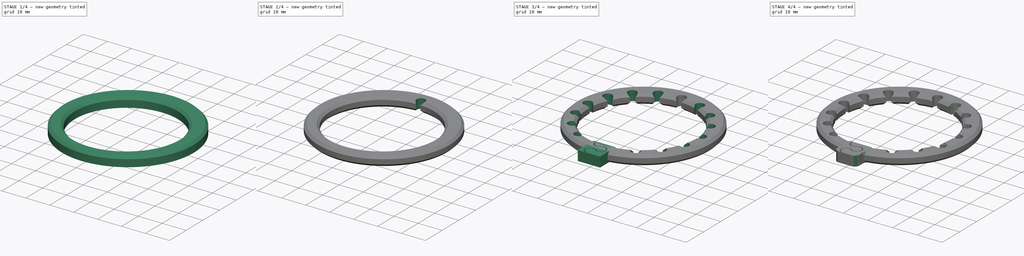
[diagram: build sequence overview — one tinted view per stage of 4, left to right]
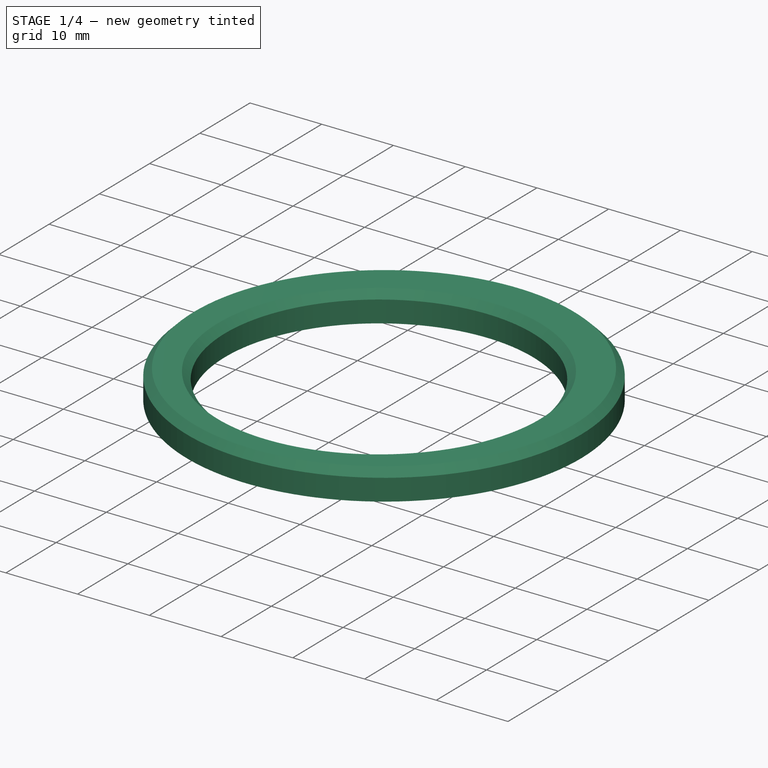
[diagram: stage 1 of 4 — iso view after this stage's code; geometry added in this stage tinted green]
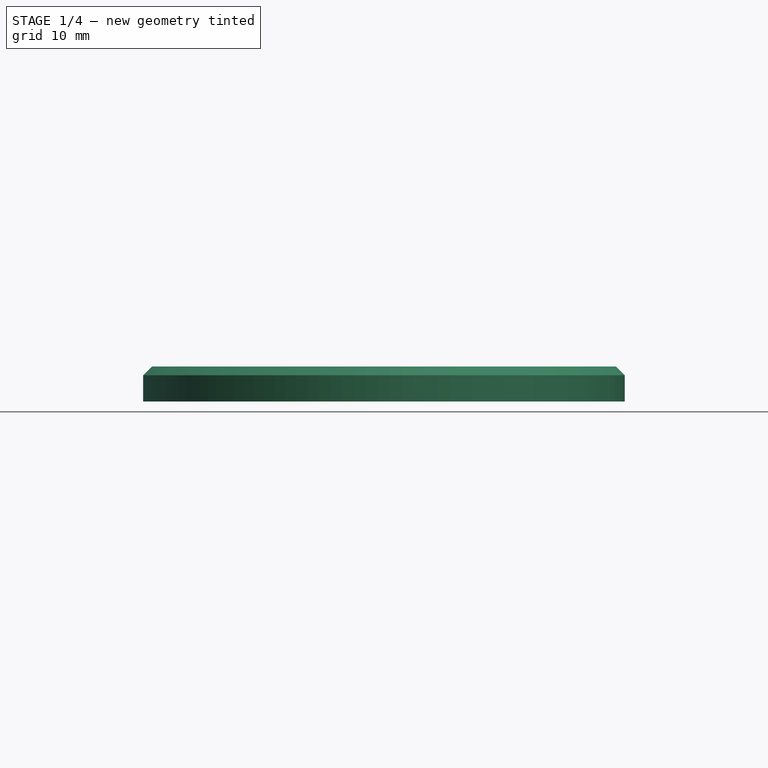
[diagram: stage 1 of 4 — front view after this stage's code; geometry added in this stage tinted green]
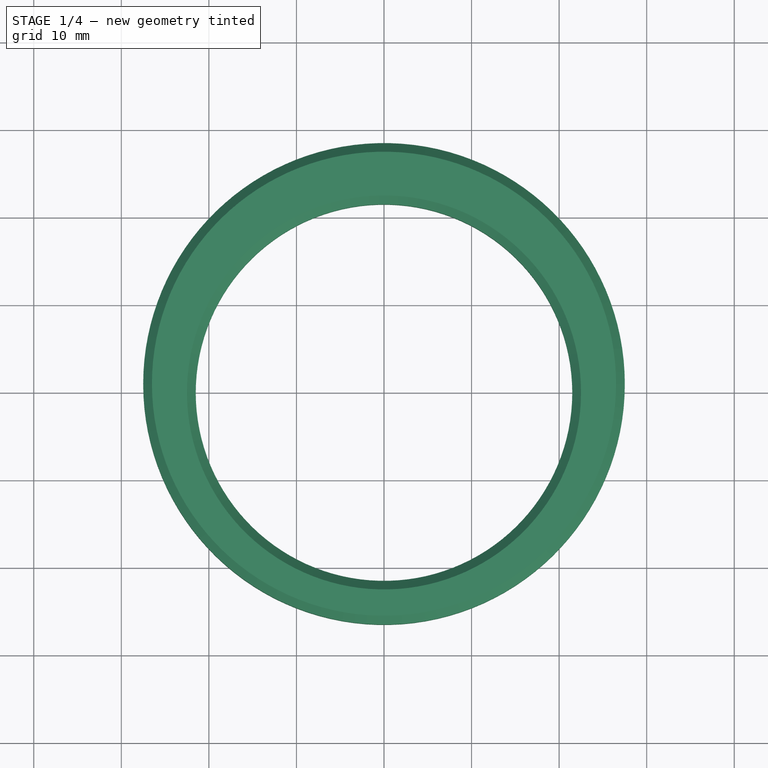
[diagram: stage 1 of 4 — top view after this stage's code; geometry added in this stage tinted green]
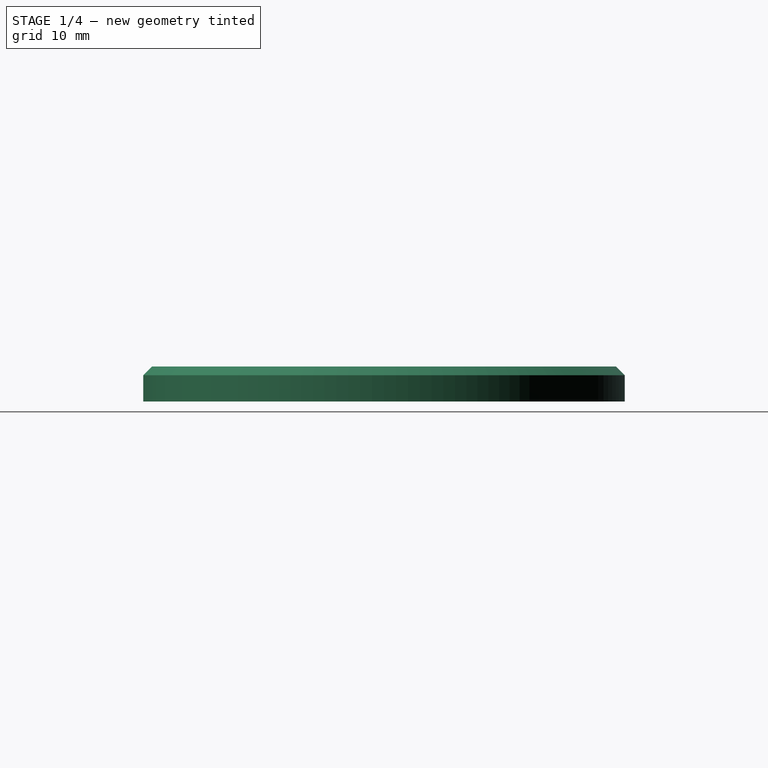
[diagram: stage 1 of 4 — right view after this stage's code; geometry added in this stage tinted green]
FCSTD DOCUMENT  (FreeCAD 0.17R13541 (Git))
Label: BigClip3
License: All rights reserved
LicenseURL: http://en.wikipedia.org/wiki/All_rights_reserved
objects: Sketcher::SketchObject×4, PartDesign::Chamfer×4, PartDesign::Fillet×3, PartDesign::Pad×2, PartDesign::Pocket×2, PartDesign::PolarPattern×2, Spreadsheet::Sheet×1, PartDesign::Body×1
note: 22 computed .brp shape members not serialized (recipe doc carries the construction recipe); baked Part::Feature solids carry a one-line shape summary decoded from their .brp

FEATURE [Sketcher::SketchObject] Sketch
  MapMode = 5
  Support = -> [XY_Plane]
  expr: Constraints[3] = P.OuterRadius
  expr: Constraints[2] = P.InnerRadius
  sketch-geometry (2):
    g0: Circle CenterX=0 CenterY=0 CenterZ=0 NormalX=0 NormalY=0 NormalZ=1 AngleXU=0 Radius=21.5
    g1: Circle CenterX=0 CenterY=1 CenterZ=0 NormalX=0 NormalY=0 NormalZ=1 AngleXU=0 Radius=27.5
  constraints (5):
    c: Coincident(g0,g-1)
    c: PointOnObject(g1,g-2)
    c: Radius(g0) = 21.5
    c: Radius(g1) = 27.5
    c: DistanceY(g-1,g1) = 1
FEATURE [Spreadsheet::Sheet] Spreadsheet  label="P"
  cells = A1=Inner radius; B1(InnerRadius)==21.5mm; A2=Thick; B2(Thick)==5.5mm; A3=Wide; B3(Wide)==4mm; A4=Fiber radius; B4(FiberRadius)==1.8mm; A5=Outer radius; B5(OuterRadius)==27.5mm
FEATURE [PartDesign::Pad] Pad
  Length = 4
  Length2 = 100
  Profile = -> Sketch
  Type = 0
  expr: Length = P.Wide
FEATURE [Sketcher::SketchObject] Sketch001
  MapMode = 5
  Support = -> [XY_Plane]
  expr: Constraints[6] = P.FiberRadius
  expr: Constraints[3] = P.InnerRadius
  expr: Constraints[2] = P.InnerRadius
  sketch-geometry (3):
    g0: LineSegment StartX=0 StartY=0 StartZ=0 EndX=0.9 EndY=21.4812 EndZ=0
    g1: LineSegment StartX=-0.9 StartY=21.4812 StartZ=0 EndX=0 EndY=0 EndZ=0
    g2: ArcOfCircle CenterX=0 CenterY=23.04 CenterZ=0 NormalX=0 NormalY=0 NormalZ=1 AngleXU=0 Radius=1.8 StartAngle=5.23599 EndAngle=10.472
  constraints (9):
    c: Coincident(g1,g-1)
    c: Coincident(g0,g-1)
    c: Distance(g0) = 21.5
    c: Distance(g1) = 21.5
    c: Coincident(g2,g1)
    c: Coincident(g2,g0)
    c: Radius(g2) = 1.8
    c: Distance(g1,g0) = 1.8
    c: DistanceX(g-1,g2) = 0
FEATURE [PartDesign::Chamfer] Chamfer
  Base = -> Pad [Edge3]
  BaseFeature = -> Pad
  Size = 1
FEATURE [PartDesign::Chamfer] Chamfer001
  Base = -> Chamfer [Edge7]
  BaseFeature = -> Chamfer
  Size = 1
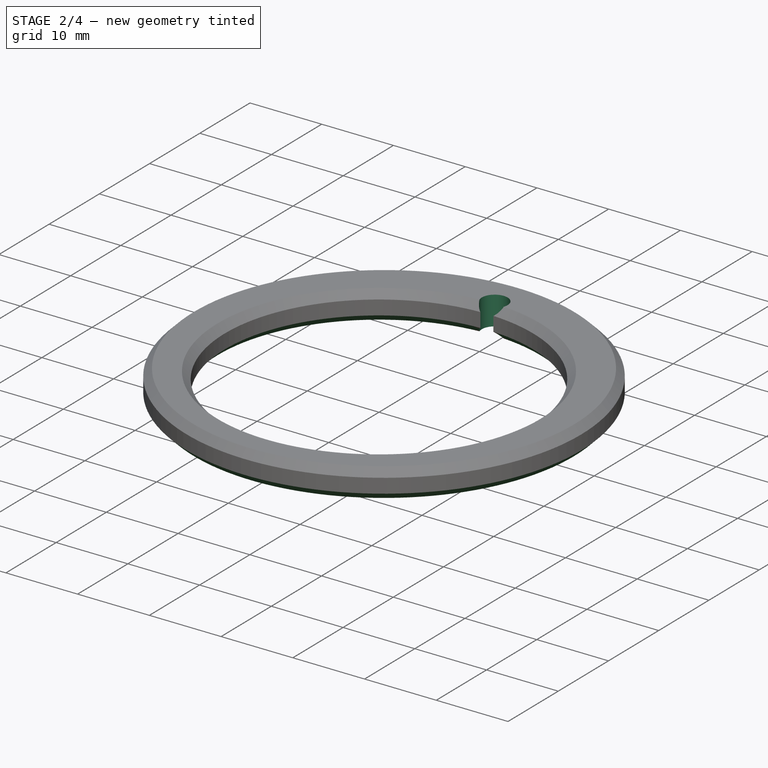
[diagram: stage 2 of 4 — iso view after this stage's code; geometry added in this stage tinted green]
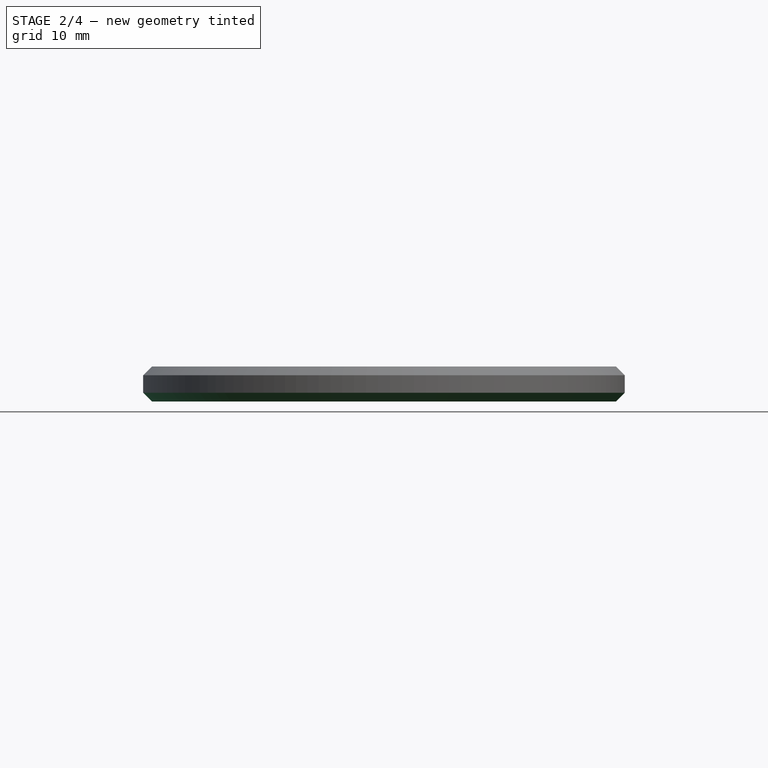
[diagram: stage 2 of 4 — front view after this stage's code; geometry added in this stage tinted green]
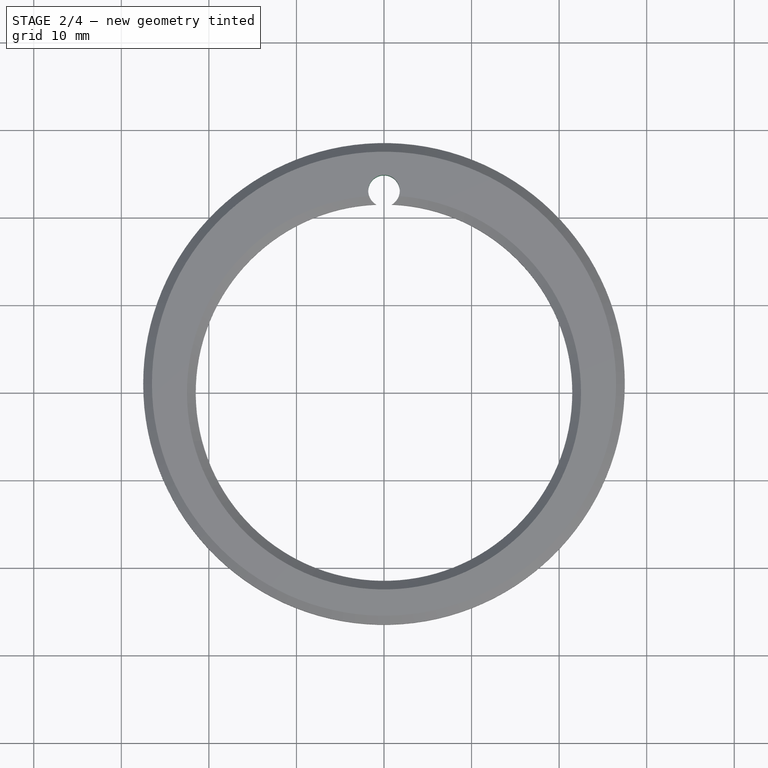
[diagram: stage 2 of 4 — top view after this stage's code; geometry added in this stage tinted green]
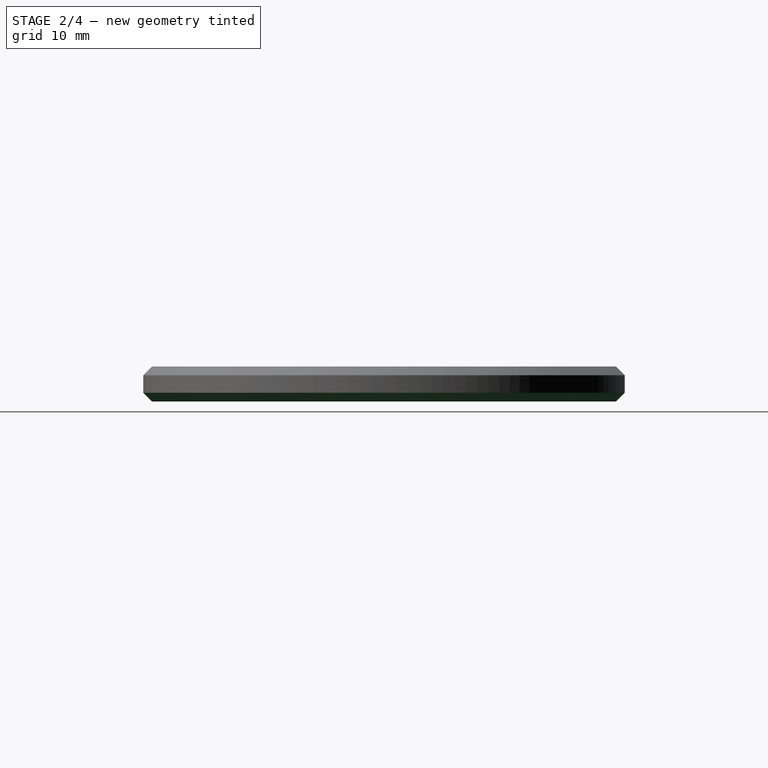
[diagram: stage 2 of 4 — right view after this stage's code; geometry added in this stage tinted green]
FEATURE [PartDesign::Chamfer] Chamfer002
  Base = -> Chamfer001 [Edge8]
  BaseFeature = -> Chamfer001
  Size = 1
FEATURE [PartDesign::Chamfer] Chamfer003
  Base = -> Chamfer002 [Edge8]
  BaseFeature = -> Chamfer002
  Size = 1
FEATURE [PartDesign::Pocket] Pocket
  BaseFeature = -> Chamfer003
  Length = 5
  Length2 = 100
  Profile = -> Sketch001
  Reversed = true
  Type = 1
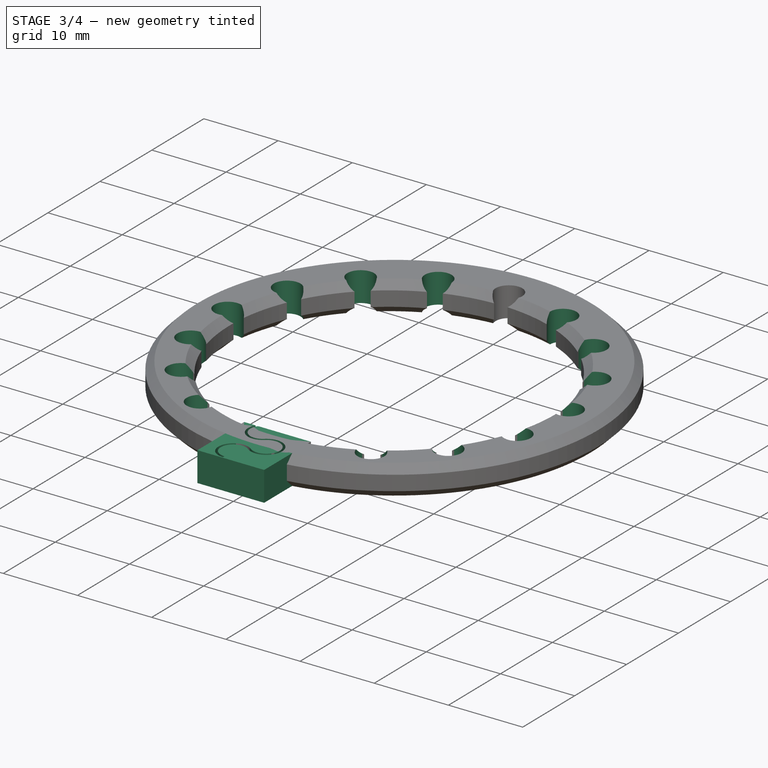
[diagram: stage 3 of 4 — iso view after this stage's code; geometry added in this stage tinted green]
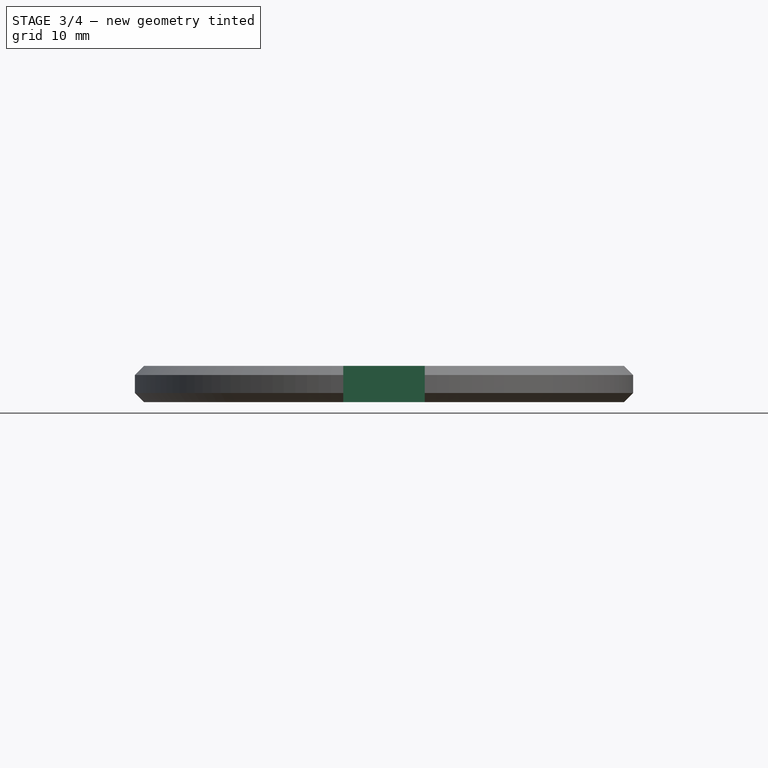
[diagram: stage 3 of 4 — front view after this stage's code; geometry added in this stage tinted green]
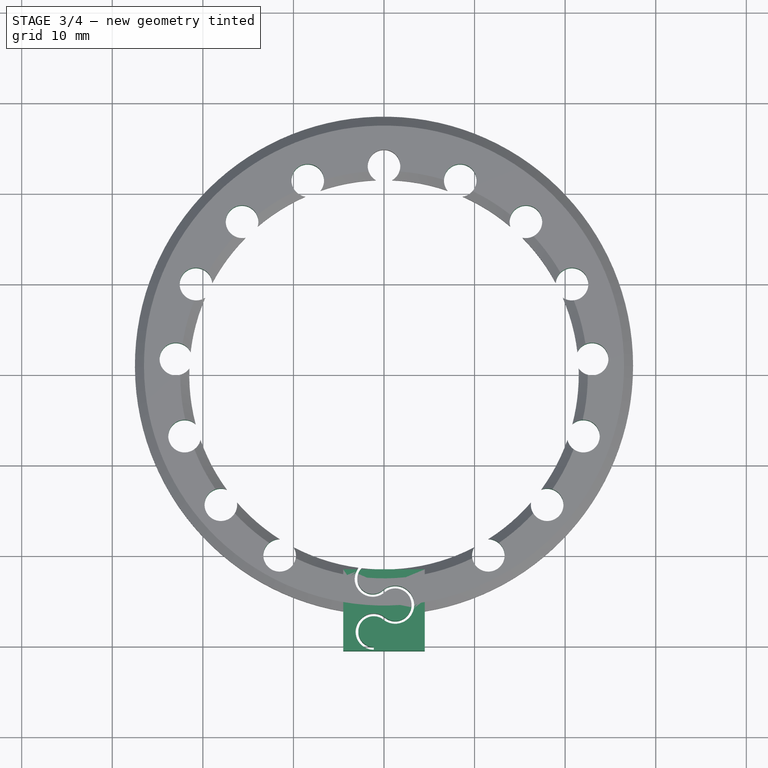
[diagram: stage 3 of 4 — top view after this stage's code; geometry added in this stage tinted green]
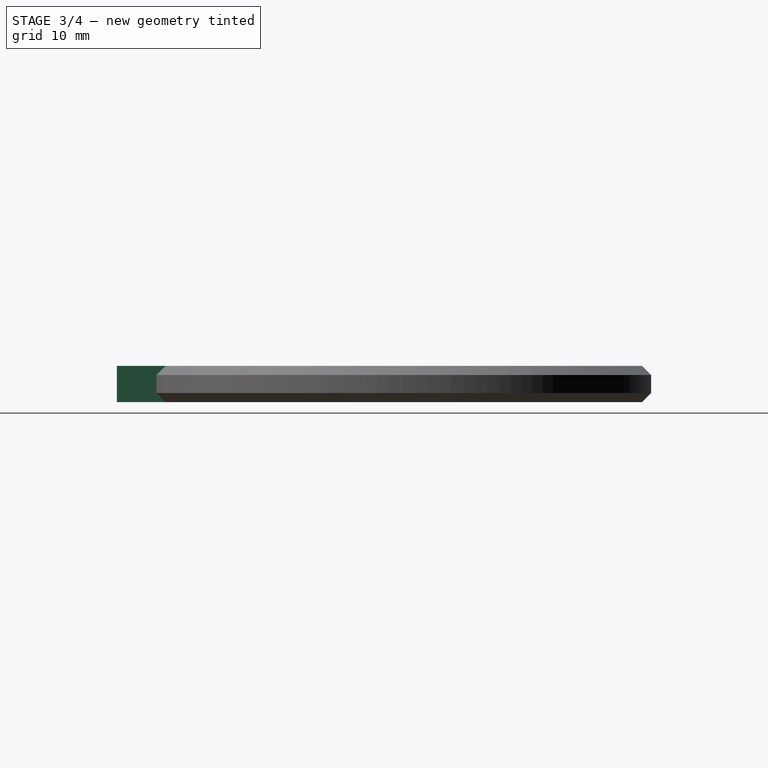
[diagram: stage 3 of 4 — right view after this stage's code; geometry added in this stage tinted green]
FEATURE [PartDesign::PolarPattern] PolarPattern
  Angle = 150
  Axis = -> Sketch001 [N_Axis]
  BaseFeature = -> Pocket
  Occurrences = 8
  Originals = -> [Pocket]
FEATURE [PartDesign::PolarPattern] PolarPattern001
  Angle = 150
  Axis = -> Sketch001 [N_Axis]
  BaseFeature = -> PolarPattern
  Occurrences = 8
  Originals = -> [Pocket]
  Reversed = true
FEATURE [Sketcher::SketchObject] Sketch002
  ExternalGeometry = -> [PolarPattern001]
  MapMode = 5
  Support = -> [XY_Plane]
  sketch-geometry (5):
    g0: GeomPoint X=0 Y=-21.5 Z=0
    g1: LineSegment StartX=-4.5 StartY=-21.5 StartZ=0 EndX=4.5 EndY=-21.5 EndZ=0
    g2: LineSegment StartX=4.5 StartY=-21.5 StartZ=0 EndX=4.5 EndY=-30.5 EndZ=0
    g3: LineSegment StartX=4.5 StartY=-30.5 StartZ=0 EndX=-4.5 EndY=-30.5 EndZ=0
    g4: LineSegment StartX=-4.5 StartY=-30.5 StartZ=0 EndX=-4.5 EndY=-21.5 EndZ=0
  constraints (14):
    c: PointOnObject(g0,g-2)
    c: PointOnObject(g0,g-3)
    c: Coincident(g1,g2)
    c: Coincident(g2,g3)
    c: Coincident(g3,g4)
    c: Coincident(g4,g1)
    c: Horizontal(g1)
    c: Horizontal(g3)
    c: Vertical(g2)
    c: Vertical(g4)
    c: Symmetric(g1,g1,g0)
    c: Equal(g4,g3)
    c: DistanceY(g2,g2) = 9
    c: PointOnObject(g0,g-4)
FEATURE [PartDesign::Pad] Pad001
  BaseFeature = -> PolarPattern001
  Length = 4
  Length2 = 100
  Profile = -> Sketch002
  Type = 0
  expr: Length = P.Wide
FEATURE [Sketcher::SketchObject] Sketch003
  ExternalGeometry = -> [Pad001]
  MapMode = 5
  Support = -> [XY_Plane]
  sketch-geometry (15):
    g0: Circle [constr] CenterX=-1.24102 CenterY=-22.5306 CenterZ=0 NormalX=0 NormalY=0 NormalZ=1 AngleXU=0 Radius=1.5
    g1: Circle [constr] CenterX=1.23751 CenterY=-25.411 CenterZ=0 NormalX=0 NormalY=0 NormalZ=1 AngleXU=0 Radius=2.3
    g2: Circle [constr] CenterX=-1.13471 CenterY=-28.3796 CenterZ=0 NormalX=0 NormalY=0 NormalZ=1 AngleXU=0 Radius=1.5
    g3: LineSegment [constr] StartX=-1.24102 StartY=-22.5306 StartZ=0 EndX=1.23751 EndY=-25.411 EndZ=0
    g4: LineSegment [constr] StartX=1.23751 StartY=-25.411 StartZ=0 EndX=-1.13471 EndY=-28.3796 EndZ=0
    g5: LineSegment [constr] StartX=-1.24102 StartY=-22.5306 StartZ=0 EndX=-1.24102 EndY=-17.5824 EndZ=0
    g6: LineSegment [constr] StartX=-1.13471 StartY=-28.3796 StartZ=0 EndX=-1.13471 EndY=-31.6456 EndZ=0
    g7: ArcOfCircle CenterX=-1.24102 CenterY=-22.5306 CenterZ=0 NormalX=0 NormalY=0 NormalZ=1 AngleXU=0 Radius=2 StartAngle=1.5708 EndAngle=5.42293
    g8: ArcOfCircle CenterX=-1.24102 CenterY=-22.5306 CenterZ=0 NormalX=0 NormalY=0 NormalZ=1 AngleXU=0 Radius=1.7 StartAngle=1.5708 EndAngle=5.42293
    g9: ArcOfCircle CenterX=1.23751 CenterY=-25.411 CenterZ=0 NormalX=0 NormalY=0 NormalZ=1 AngleXU=0 Radius=1.8 StartAngle=4.03819 EndAngle=8.56452
    g10: ArcOfCircle CenterX=1.23751 CenterY=-25.411 CenterZ=0 NormalX=0 NormalY=0 NormalZ=1 AngleXU=0 Radius=2.1 StartAngle=4.03819 EndAngle=8.56452
    g11: ArcOfCircle CenterX=-1.13471 CenterY=-28.3796 CenterZ=0 NormalX=0 NormalY=0 NormalZ=1 AngleXU=0 Radius=1.7 StartAngle=0.896602 EndAngle=4.71239
    g12: ArcOfCircle CenterX=-1.13471 CenterY=-28.3796 CenterZ=0 NormalX=0 NormalY=0 NormalZ=1 AngleXU=0 Radius=2 StartAngle=0.896602 EndAngle=4.71239
    g13: LineSegment StartX=-1.24102 StartY=-20.5306 StartZ=0 EndX=-1.24102 EndY=-20.8306 EndZ=0
    g14: LineSegment StartX=-1.13471 StartY=-30.0796 StartZ=0 EndX=-1.13471 EndY=-30.3796 EndZ=0
  constraints (37):
    c: Radius(g0) = 1.5
    c: Radius(g2) = 1.5
    c: Tangent(g1,g0)
    c: Tangent(g1,g2)
    c: Radius(g1) = 2.3
    c: Coincident(g3,g0)
    c: Coincident(g3,g1)
    c: Coincident(g4,g1)
    c: Coincident(g4,g2)
    c: Coincident(g6,g2)
    c: Vertical(g6)
    c: Vertical(g5)
    c: Coincident(g5,g0)
    c: Coincident(g7,g0)
    c: PointOnObject(g7,g5)
    c: PointOnObject(g7,g3)
    c: PointOnObject(g8,g5)
    c: PointOnObject(g8,g3)
    c: Coincident(g9,g1)
    c: Coincident(g9,g7)
    c: PointOnObject(g9,g4)
    c: Coincident(g10,g1)
    c: Coincident(g10,g8)
    c: PointOnObject(g10,g4)
    c: Coincident(g11,g2)
    c: Coincident(g11,g10)
    c: PointOnObject(g11,g6)
    c: Coincident(g12,g2)
    c: Coincident(g12,g9)
    c: PointOnObject(g12,g6)
    c: Coincident(g8,g0)
    c: DistanceY(g0,g8) = 1.7
    c: Radius(g7) = 2
    c: Coincident(g13,g7)
    c: Coincident(g13,g8)
    c: Coincident(g14,g11)
    c: Coincident(g14,g12)
FEATURE [PartDesign::Pocket] Pocket001
  BaseFeature = -> Pad001
  Length = 5
  Length2 = 100
  Profile = -> Sketch003
  Reversed = true
  Type = 1
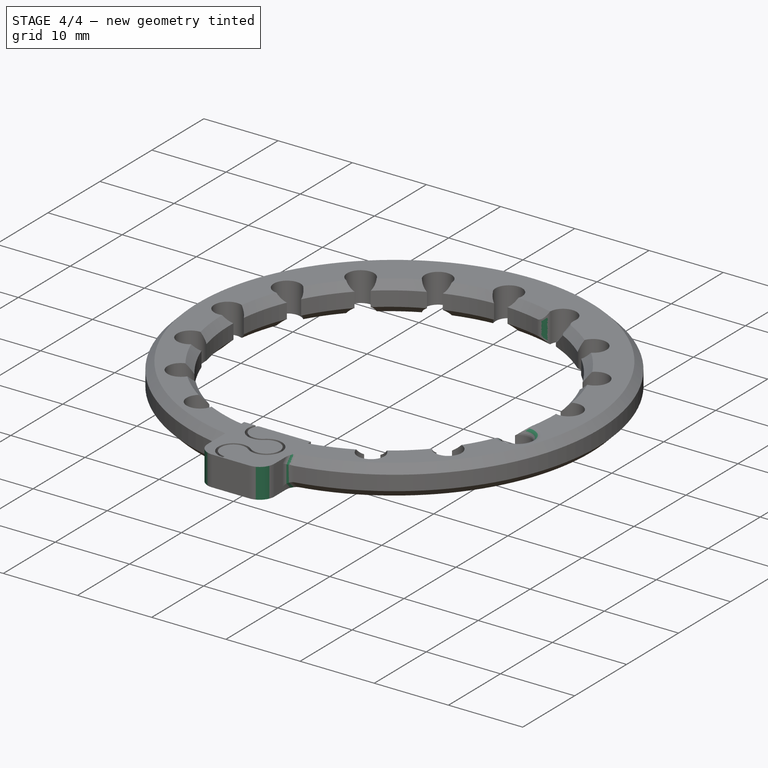
[diagram: stage 4 of 4 — iso view after this stage's code; geometry added in this stage tinted green]
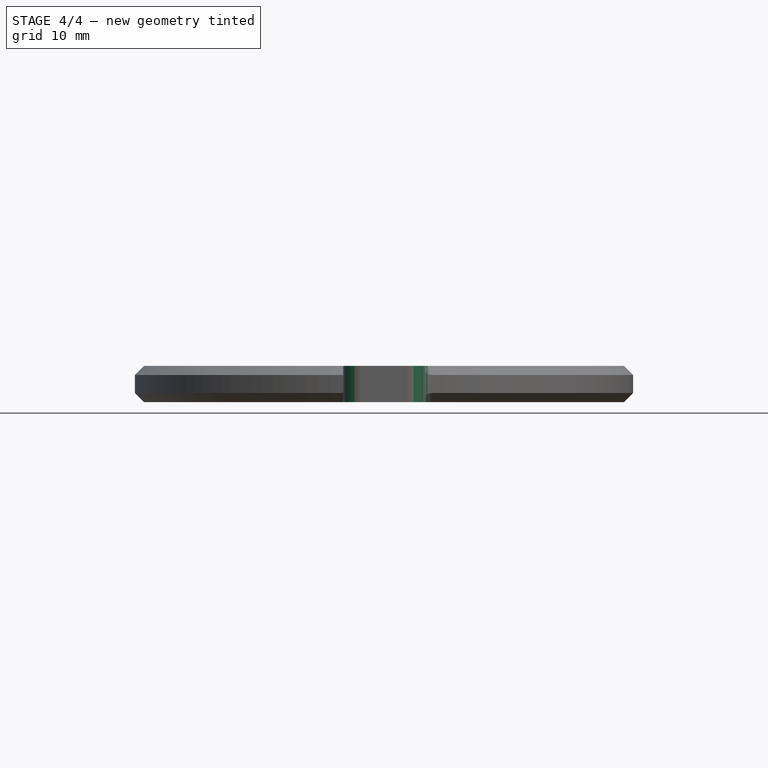
[diagram: stage 4 of 4 — front view after this stage's code; geometry added in this stage tinted green]
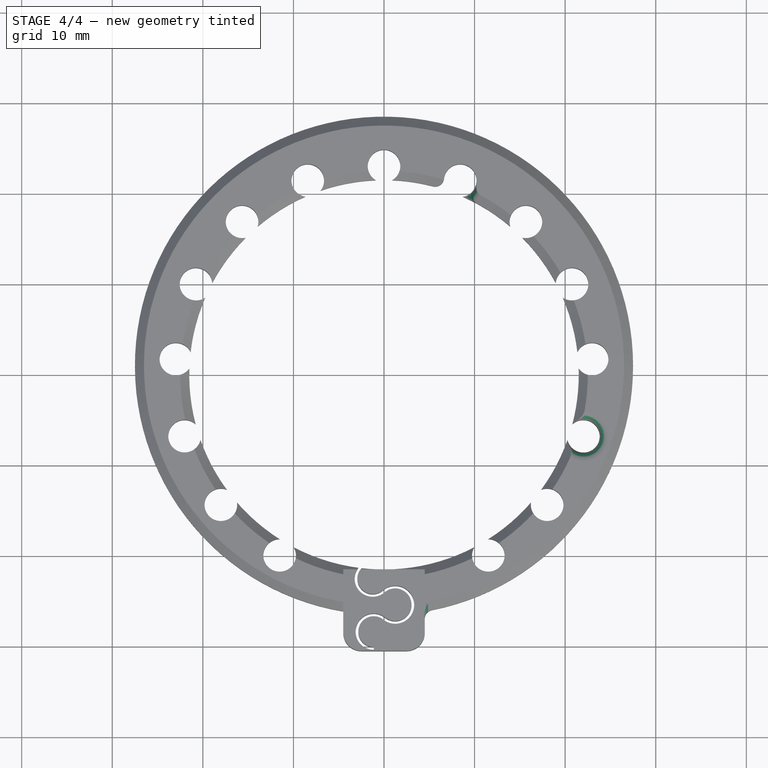
[diagram: stage 4 of 4 — top view after this stage's code; geometry added in this stage tinted green]
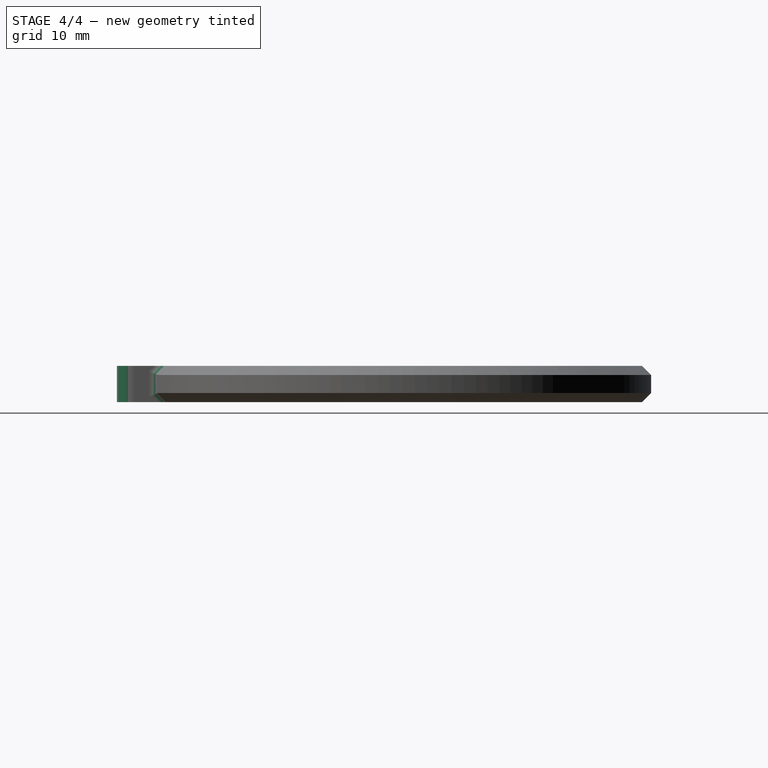
[diagram: stage 4 of 4 — right view after this stage's code; geometry added in this stage tinted green]
FEATURE [PartDesign::Fillet] Fillet
  Base = -> Pocket001 [Edge179,Edge271]
  BaseFeature = -> Pocket001
  Radius = 2
FEATURE [PartDesign::Fillet] Fillet001
  Base = -> Fillet [Edge6,Edge5,Edge3]
  BaseFeature = -> Fillet
  Radius = 1
FEATURE [PartDesign::Fillet] Fillet002
  Base = -> Fillet001 [Edge114,Edge242,Edge244]
  BaseFeature = -> Fillet001
  Radius = 1
FEATURE [PartDesign::Body] Body
  Group = -> [Sketch,Pad,Sketch001,Chamfer,Chamfer001,Chamfer002,Chamfer003,Pocket,PolarPattern,PolarPattern001,Sketch002,Pad001,Sketch003,Pocket001,Fillet,Fillet001,Fillet002]
  Origin = -> Origin
  Tip = -> Fillet002
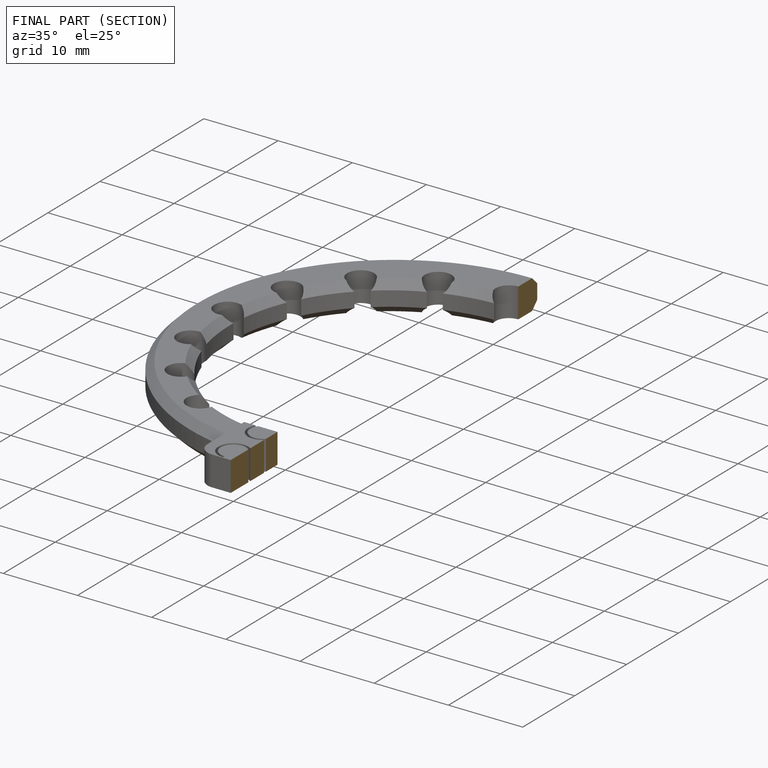
[diagram: finished part — half-section view (interior)]
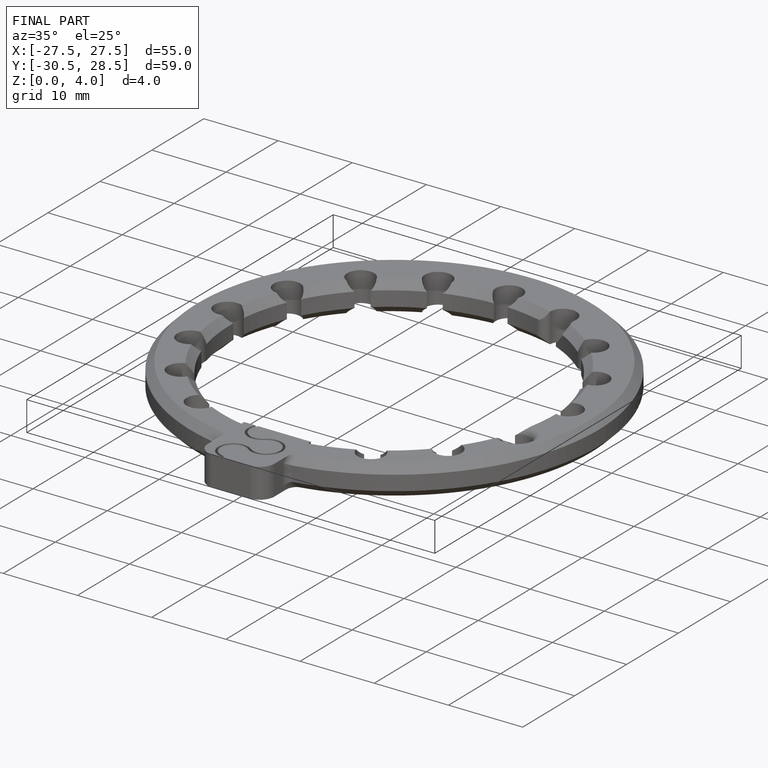
[diagram: finished part — iso view with bounding-box wireframe]
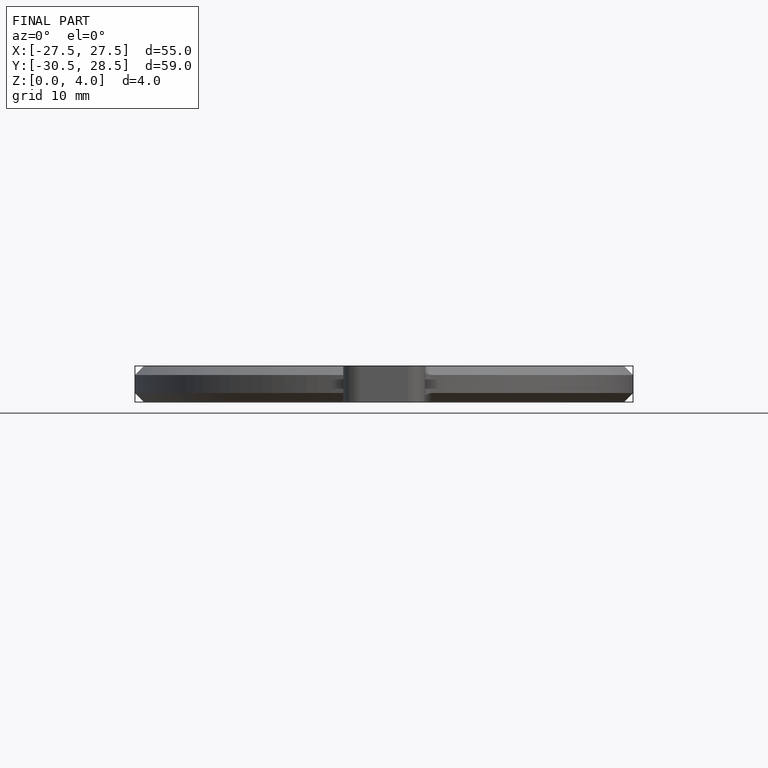
[diagram: finished part — front view with bounding-box wireframe]
